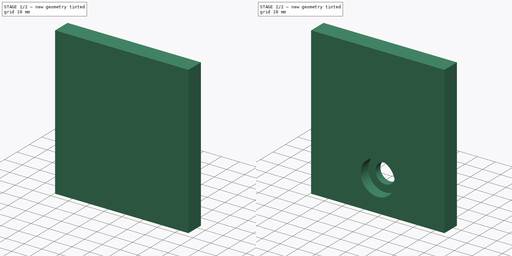
[diagram: build sequence overview — one tinted view per stage of 2, left to right]
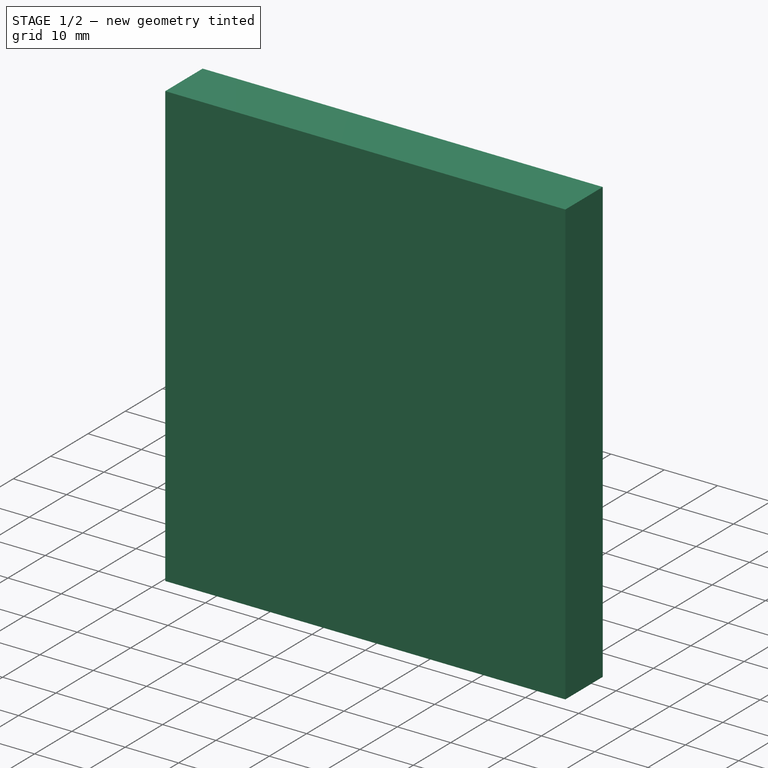
[diagram: stage 1 of 2 — iso view after this stage's code; geometry added in this stage tinted green]
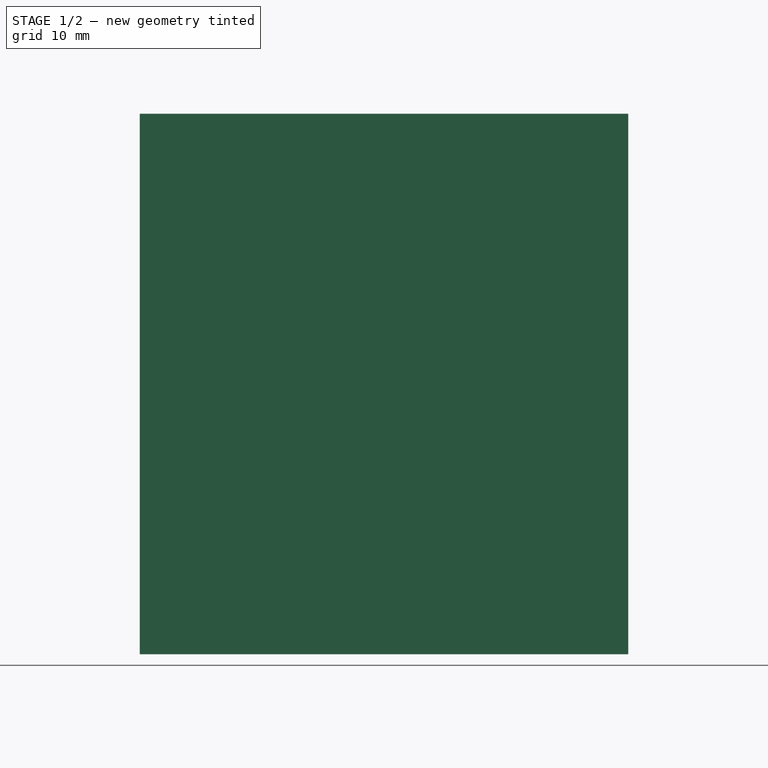
[diagram: stage 1 of 2 — front view after this stage's code; geometry added in this stage tinted green]
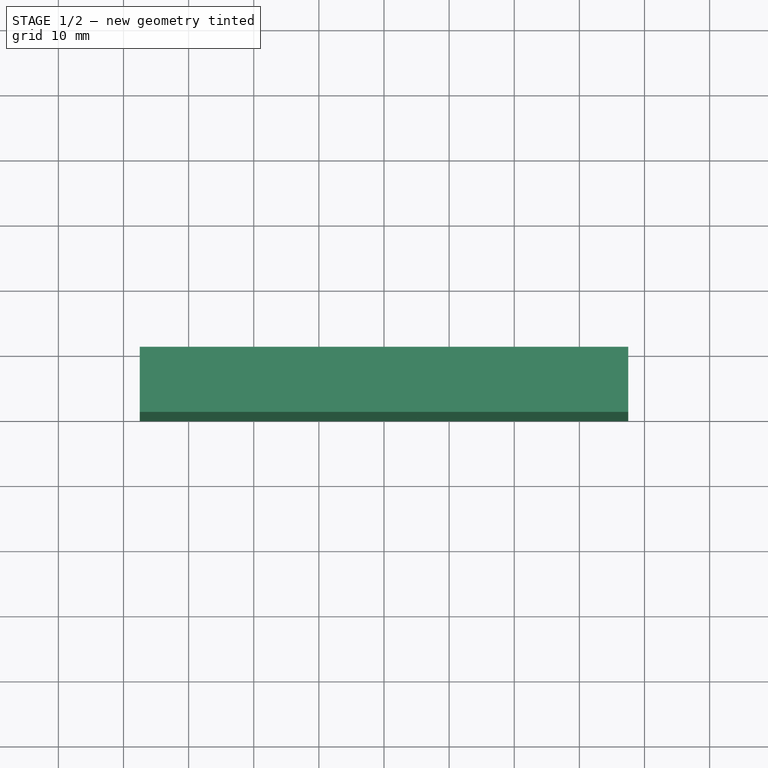
[diagram: stage 1 of 2 — top view after this stage's code; geometry added in this stage tinted green]
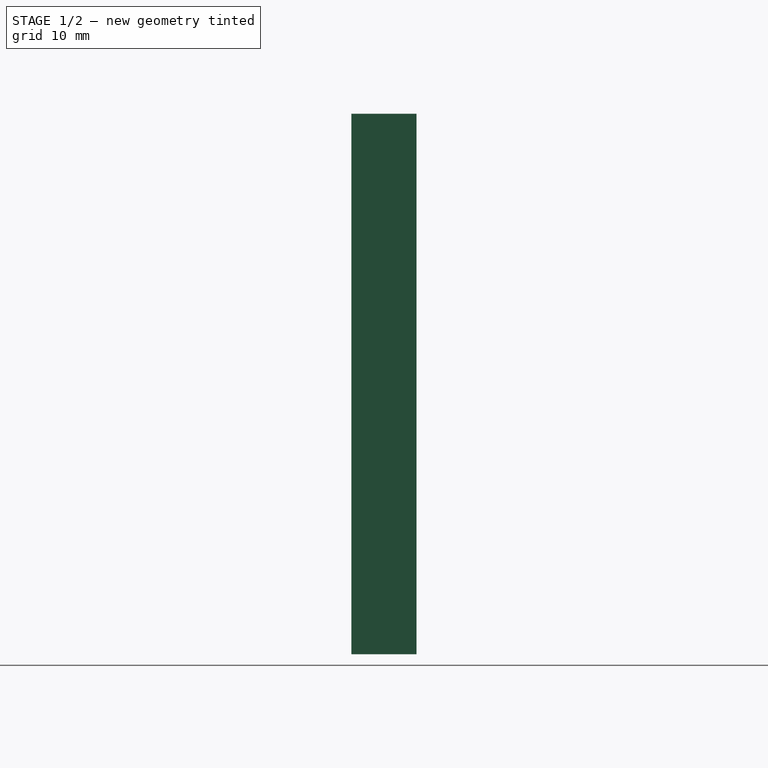
[diagram: stage 1 of 2 — right view after this stage's code; geometry added in this stage tinted green]
FCSTD DOCUMENT  (FreeCAD 0.15R4669 (Git))
Label: BR_supportMoteurE
License: All rights reserved
LicenseURL: http://en.wikipedia.org/wiki/All_rights_reserved
objects: Sketcher::SketchObject×2, Part::Extrusion×2, Part::Cut×1
note: 5 computed .brp shape members not serialized (recipe doc carries the construction recipe); baked Part::Feature solids carry a one-line shape summary decoded from their .brp

FEATURE [Sketcher::SketchObject] Sketch  label="sketchSupportMoteurE"
  Placement = pos=(0,0,0) rot=(1,0,0;1.5708rad)
  sketch-geometry (5):
    g0: LineSegment StartX=-37.5 StartY=65 StartZ=0 EndX=37.5 EndY=65 EndZ=0
    g1: LineSegment StartX=37.5 StartY=65 StartZ=0 EndX=37.5 EndY=-18 EndZ=0
    g2: LineSegment StartX=37.5 StartY=-18 StartZ=0 EndX=-37.5 EndY=-18 EndZ=0
    g3: LineSegment StartX=-37.5 StartY=-18 StartZ=0 EndX=-37.5 EndY=65 EndZ=0
    g4: Circle CenterX=0 CenterY=0 CenterZ=0 NormalX=0 NormalY=0 NormalZ=1 Radius=5.5
  constraints (14):
    c: Coincident(g0,g1)
    c: Coincident(g1,g2)
    c: Coincident(g2,g3)
    c: Coincident(g3,g0)
    c: Horizontal(g0)
    c: Horizontal(g2)
    c: Vertical(g1)
    c: Vertical(g3)
    c: Symmetric(g2,g1,g-2)
    c: DistanceX(g2) = -75
    c: Radius(g4) = 5.5
    c: DistanceY(g4,g0) = 65
    c: DistanceY(g2,g4) = 18
    c: Coincident(g4,g-1)
FEATURE [Part::Extrusion] Extrude  label="supportMoteurTmpE"
  Base = -> Sketch
  Dir = (0,10,0)
  Solid = true
FEATURE [Sketcher::SketchObject] Sketch001  label="sketchRoulement"
  Placement = pos=(0,0,0) rot=(1,0,0;1.5708rad)
  sketch-geometry (1):
    g0: Circle CenterX=0 CenterY=0 CenterZ=0 NormalX=0 NormalY=0 NormalZ=1 Radius=9.6
  constraints (2):
    c: Coincident(g0,g-1)
    c: Radius(g0) = 9.6
FEATURE [Part::Extrusion] Extrude001  label="pocheRoulementE"
  Base = -> Sketch001
  Dir = (0,6,0)
  Solid = true
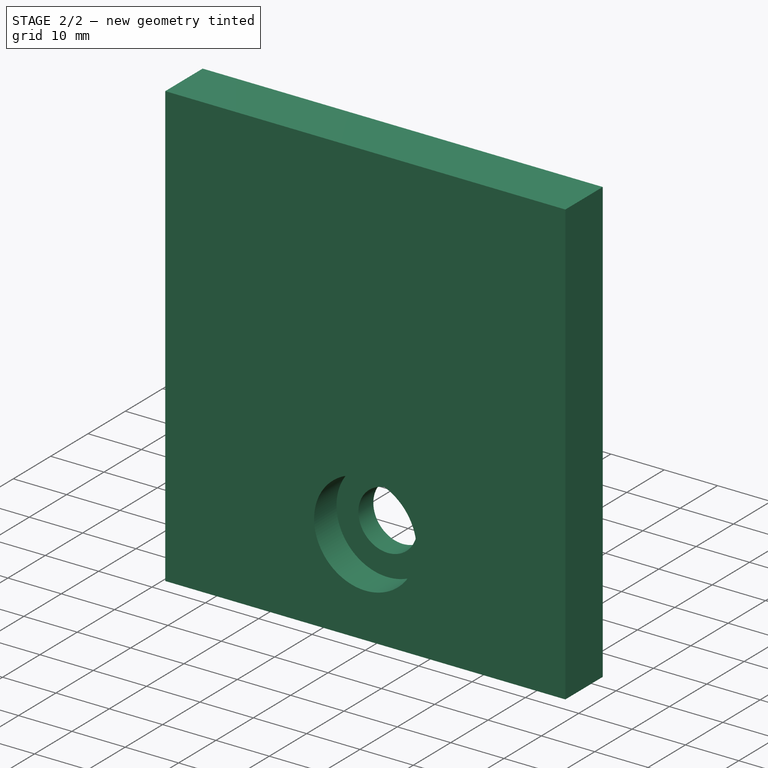
[diagram: stage 2 of 2 — iso view after this stage's code; geometry added in this stage tinted green]
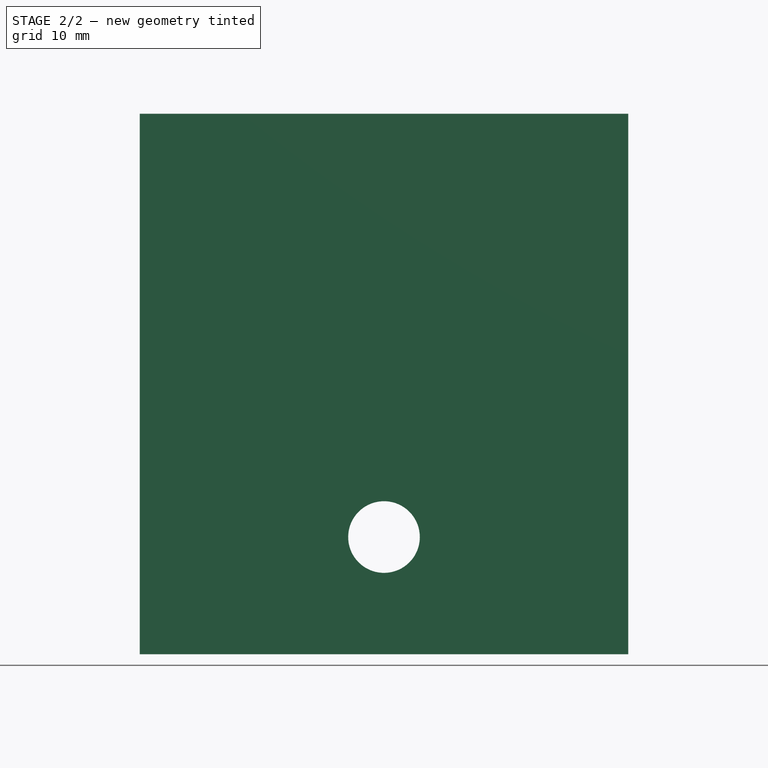
[diagram: stage 2 of 2 — front view after this stage's code; geometry added in this stage tinted green]
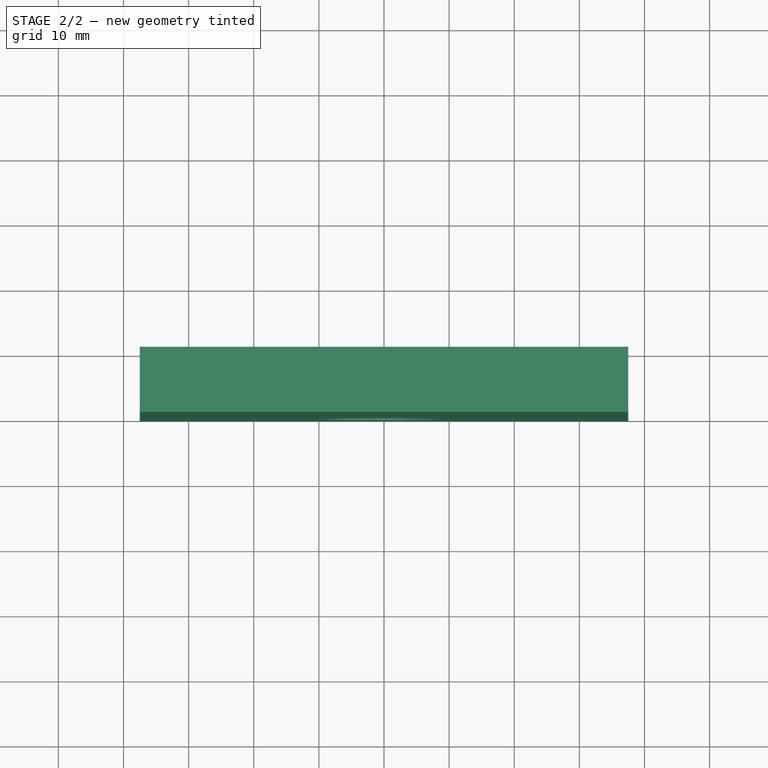
[diagram: stage 2 of 2 — top view after this stage's code; geometry added in this stage tinted green]
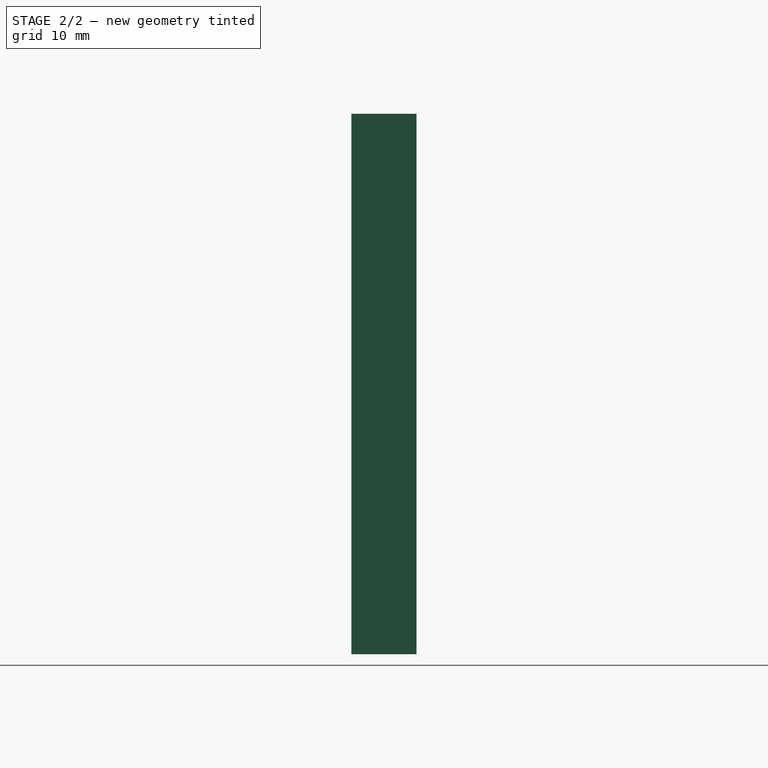
[diagram: stage 2 of 2 — right view after this stage's code; geometry added in this stage tinted green]
FEATURE [Part::Cut] Cut  label="supportMoteurE"
  Base = -> Extrude
  Tool = -> Extrude001
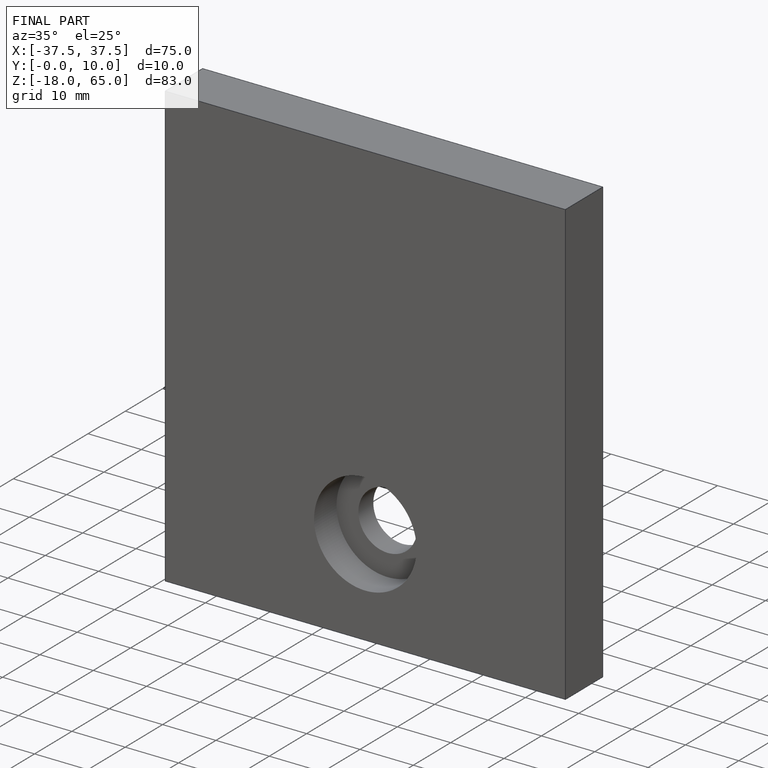
[diagram: finished part — iso view with bounding-box wireframe]
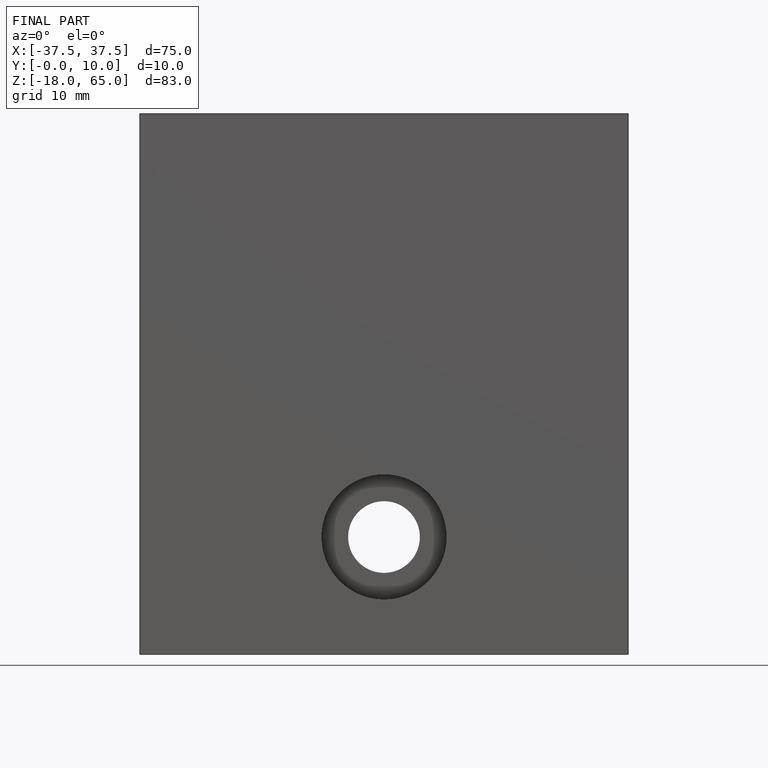
[diagram: finished part — front view with bounding-box wireframe]
